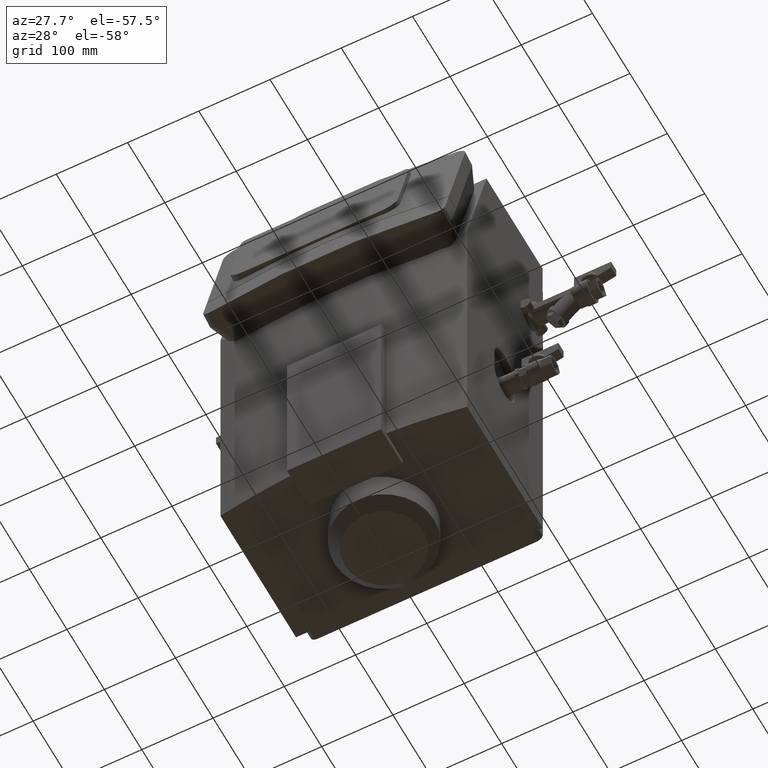
[diagram: clean part render]
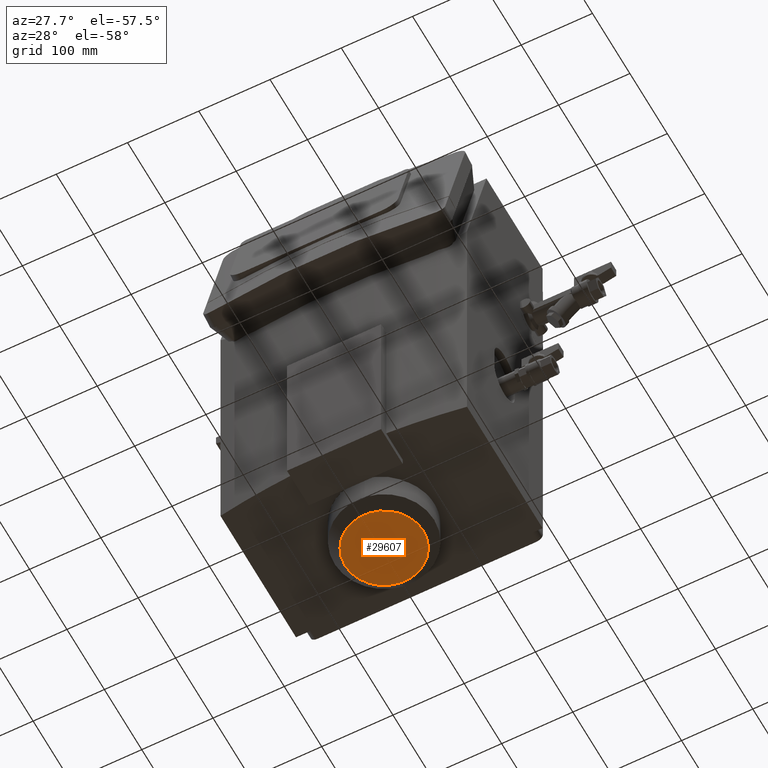
[diagram: same view with one face highlighted and labeled with its STEP entity id]
A machine part, auxiliary view. The second image highlights one B-rep face of the part: STEP entity #29607.
In plain terms, the highlighted planar face has unit normal (0, 0, 1).
Its self-contained STEP definition (entity closure, byte-faithful):
#25044=CARTESIAN_POINT('',(7.709428618576567,-169.54351380279837,-642.68999999973596));
#25045=VERTEX_POINT('',#25044);
#25070=CARTESIAN_POINT('',(-6.433428524280316,-60.456486197143988,-642.68999999973596));
#25071=VERTEX_POINT('',#25070);
#25078=CARTESIAN_POINT('',(0.638000047148125,-114.99999999997118,-642.68999999973596));
#25079=DIRECTION('',(3.036524E-018,-2.342139E-017,1.0));
#25080=DIRECTION('',(0.128571428571428,-0.991700250960492,-2.361741E-017));
#25081=AXIS2_PLACEMENT_3D('',#25078,#25079,#25080);
#25082=CIRCLE('',#25081,55.000000000000021);
#25083=EDGE_CURVE('',#25071,#25045,#25082,.T.);
#28721=CARTESIAN_POINT('',(0.638000047148125,-114.99999999997118,-642.68999999973596));
#28722=DIRECTION('',(3.036524E-018,-2.342139E-017,1.0));
#28723=DIRECTION('',(0.128571428571428,-0.991700250960492,-2.361741E-017));
#28724=AXIS2_PLACEMENT_3D('',#28721,#28722,#28723);
#28725=CIRCLE('',#28724,55.000000000000021);
#28726=EDGE_CURVE('',#25045,#25071,#28725,.T.);
#29598=CARTESIAN_POINT('',(-59.79909750278307,-54.562902450039985,-642.68999999973596));
#29599=DIRECTION('',(0.0,0.0,1.0));
#29600=DIRECTION('',(0.0,-1.0,0.0));
#29601=AXIS2_PLACEMENT_3D('',#29598,#29599,#29600);
#29602=PLANE('',#29601);
#29603=ORIENTED_EDGE('',*,*,#25083,.F.);
#29604=ORIENTED_EDGE('',*,*,#28726,.F.);
#29605=EDGE_LOOP('',(#29603,#29604));
#29606=FACE_OUTER_BOUND('',#29605,.T.);
#29607=ADVANCED_FACE('',(#29606),#29602,.F.);